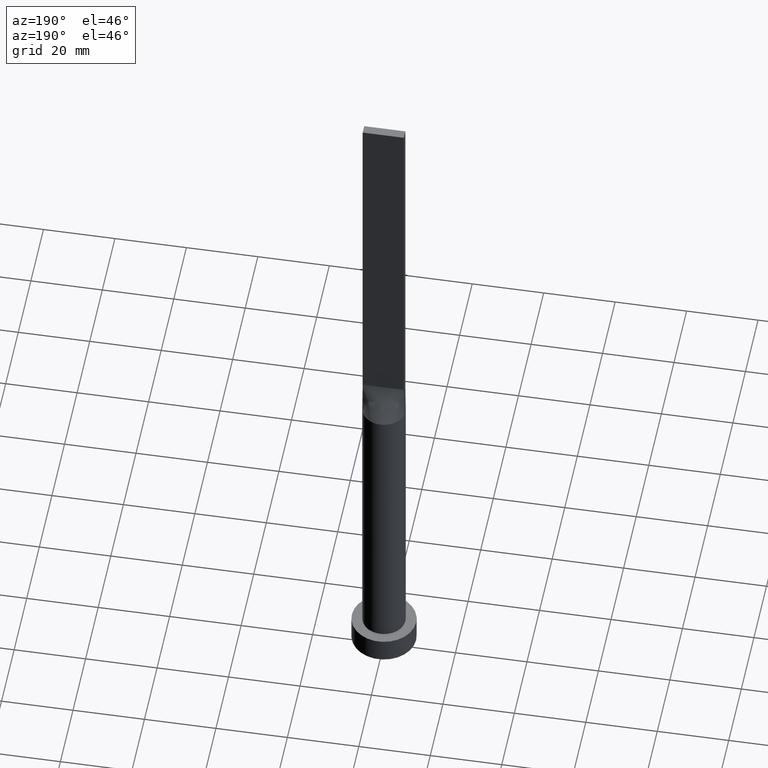
[diagram: clean part render]
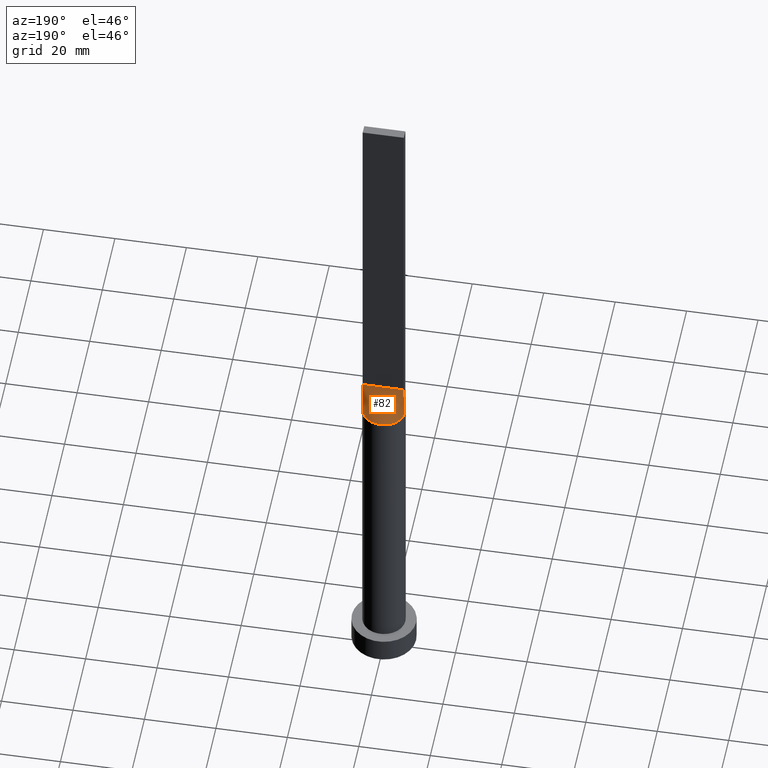
[diagram: same view with one face highlighted and labeled with its STEP entity id]
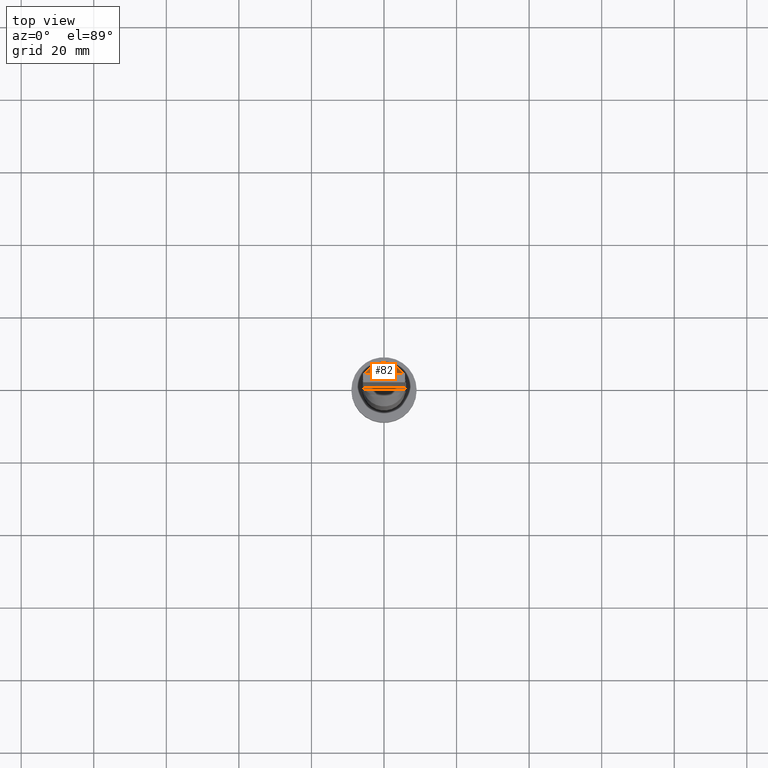
[diagram: same view with one face highlighted and labeled with its STEP entity id]
A machine part, auxiliary view. The second image highlights one B-rep face of the part: STEP entity #82.
A second angle (top view) of the same face is appended — the face is thin or edge-on in the first view.
In plain terms, the highlighted face is a freeform B-spline surface patch.
Its self-contained STEP definition (entity closure, byte-faithful):
#2 = CARTESIAN_POINT ( 'NONE',  ( -0.8058840496048931268, 5.959001506938069070, 90.00000000000001421 ) ) ;
#4 = ORIENTED_EDGE ( 'NONE', *, *, #496, .T. ) ;
#6 = CARTESIAN_POINT ( 'NONE',  ( -5.759267569818392829, 1.752014689090956256, 90.00000000000002842 ) ) ;
#23 = VERTEX_POINT ( 'NONE', #549 ) ;
#26 = CARTESIAN_POINT ( 'NONE',  ( 3.833333333333329929, 1.250000000000000222, 100.0000000000000000 ) ) ;
#29 = CARTESIAN_POINT ( 'NONE',  ( 4.659826596530313836, 3.842755878357678068, 90.00000000000002842 ) ) ;
#31 = B_SPLINE_CURVE_WITH_KNOTS ( 'NONE', 3,
 ( #96, #152, #329, #276, #462, #148, #106, #236, #226, #410, #420, #565, #2, #324, #359, #187, #190, #57, #367, #372, #6, #512 ),
 .UNSPECIFIED., .F., .F.,
 ( 4, 2, 2, 2, 2, 2, 2, 2, 2, 2, 4 ),
 ( 0.000000000000000000, 0.1249999999999999722, 0.2499999999999999445, 0.3749999999999999445, 0.4374999999999999445, 0.4999999999999998890, 0.5624999999999998890, 0.6249999999999998890, 0.7499999999999997780, 0.8749999999999998890, 1.000000000000000000 ),
 .UNSPECIFIED. ) ;
#32 = CARTESIAN_POINT ( 'NONE',  ( 3.354166666666662966, 1.250000000000000222, 100.0000000000000000 ) ) ;
#35 = FACE_OUTER_BOUND ( 'NONE', #466, .T. ) ;
#40 = CARTESIAN_POINT ( 'NONE',  ( -5.806529091768402928, 1.262288932993132606, 95.00000000000000000 ) ) ;
#50 = CARTESIAN_POINT ( 'NONE',  ( -1.966519853258818173, 5.681792876789067748, 90.00000000000001421 ) ) ;
#55 = CARTESIAN_POINT ( 'NONE',  ( -3.037647739454304663, 5.231880992812857123, 90.00000000000007105 ) ) ;
#57 = CARTESIAN_POINT ( 'NONE',  ( -4.659826596530312948, 3.842755878357679844, 90.00000000000001421 ) ) ;
#59 = CARTESIAN_POINT ( 'NONE',  ( -5.038190104264874236, 3.311355329404293446, 90.00000000000001421 ) ) ;
#63 = CARTESIAN_POINT ( 'NONE',  ( -5.750000000000000000, 1.250000000000000222, 100.0000000000000000 ) ) ;
#65 = CARTESIAN_POINT ( 'NONE',  ( 0.9583333333333283743, 1.250000000000000222, 100.0000000000000000 ) ) ;
#76 = EDGE_CURVE ( 'NONE', #79, #309, #227, .T. ) ;
#79 = VERTEX_POINT ( 'NONE', #92 ) ;
#82 = ADVANCED_FACE ( 'NONE', ( #35 ), #381, .T. ) ;
#88 = CARTESIAN_POINT ( 'NONE',  ( 5.759267569818392829, 1.752014689090955590, 90.00000000000002842 ) ) ;
#92 = CARTESIAN_POINT ( 'NONE',  ( 5.863058183536806744, 1.274577865986262326, 90.00000000000001421 ) ) ;
#96 = CARTESIAN_POINT ( 'NONE',  ( 5.863058183536806744, 1.274577865986262326, 90.00000000000001421 ) ) ;
#98 = CARTESIAN_POINT ( 'NONE',  ( -0.2395833333333383663, 1.250000000000000222, 100.0000000000000000 ) ) ;
#102 = LINE ( 'NONE', #40, #347 ) ;
#104 = CARTESIAN_POINT ( 'NONE',  ( -5.750000000000000000, 1.250000000000000222, 100.0000000000000000 ) ) ;
#106 = CARTESIAN_POINT ( 'NONE',  ( 3.037647739454305995, 5.231880992812856235, 90.00000000000002842 ) ) ;
#126 = CARTESIAN_POINT ( 'NONE',  ( 5.586898165904734093, 2.266054396544147309, 90.00000000000002842 ) ) ;
#134 = CARTESIAN_POINT ( 'NONE',  ( 5.750000000000000000, 1.250000000000000222, 100.0000000000000000 ) ) ;
#144 = DIRECTION ( 'NONE',  ( 0.01130506171853803803, -0.002457622112725964866, 0.9999330755971076456 ) ) ;
#145 = CARTESIAN_POINT ( 'NONE',  ( -0.4029827085191223790, 5.999999999999998224, 90.00000000000002842 ) ) ;
#148 = CARTESIAN_POINT ( 'NONE',  ( 3.660567483996337579, 4.804269179125218336, 90.00000000000002842 ) ) ;
#152 = CARTESIAN_POINT ( 'NONE',  ( 5.759267569818392829, 1.752014689090955590, 90.00000000000002842 ) ) ;
#157 = CARTESIAN_POINT ( 'NONE',  ( 3.660567483996337579, 4.804269179125218336, 90.00000000000002842 ) ) ;
#170 = ORIENTED_EDGE ( 'NONE', *, *, #211, .T. ) ;
#185 = VECTOR ( 'NONE', #579, 1000.000000000000000 ) ;
#187 = CARTESIAN_POINT ( 'NONE',  ( -3.037647739454304663, 5.231880992812857123, 90.00000000000007105 ) ) ;
#188 = CARTESIAN_POINT ( 'NONE',  ( 5.863058183536806744, 1.274577865986262104, 90.00000000000001421 ) ) ;
#190 = CARTESIAN_POINT ( 'NONE',  ( -3.660567483996338023, 4.804269179125219225, 90.00000000000005684 ) ) ;
#210 = CARTESIAN_POINT ( 'NONE',  ( 0.4029827085191226566, 5.999999999999999112, 90.00000000000002842 ) ) ;
#211 = EDGE_CURVE ( 'NONE', #337, #23, #102, .T. ) ;
#226 = CARTESIAN_POINT ( 'NONE',  ( 1.587717880441007479, 5.799853445840305710, 90.00000000000000000 ) ) ;
#227 = LINE ( 'NONE', #360, #393 ) ;
#236 = CARTESIAN_POINT ( 'NONE',  ( 1.966519853258819062, 5.681792876789066860, 90.00000000000002842 ) ) ;
#244 = CARTESIAN_POINT ( 'NONE',  ( -1.916666666666669849, 1.250000000000000222, 100.0000000000000000 ) ) ;
#250 = CARTESIAN_POINT ( 'NONE',  ( -1.197916666666670515, 1.250000000000000222, 100.0000000000000000 ) ) ;
#260 = LINE ( 'NONE', #63, #185 ) ;
#276 = CARTESIAN_POINT ( 'NONE',  ( 5.038190104264874236, 3.311355329404293002, 90.00000000000004263 ) ) ;
#277 = CARTESIAN_POINT ( 'NONE',  ( 5.270833333333332149, 1.250000000000000222, 100.0000000000000000 ) ) ;
#283 = CARTESIAN_POINT ( 'NONE',  ( -1.587717880441007035, 5.799853445840308375, 90.00000000000001421 ) ) ;
#288 = CARTESIAN_POINT ( 'NONE',  ( 2.395833333333328596, 1.250000000000000222, 100.0000000000000000 ) ) ;
#290 = CARTESIAN_POINT ( 'NONE',  ( -5.270833333333333925, 1.250000000000000222, 100.0000000000000000 ) ) ;
#293 = CARTESIAN_POINT ( 'NONE',  ( 1.587717880441007479, 5.799853445840305710, 90.00000000000000000 ) ) ;
#299 = CARTESIAN_POINT ( 'NONE',  ( -5.586898165904732316, 2.266054396544148197, 90.00000000000002842 ) ) ;
#309 = VERTEX_POINT ( 'NONE', #575 ) ;
#324 = CARTESIAN_POINT ( 'NONE',  ( -1.587717880441007035, 5.799853445840308375, 90.00000000000001421 ) ) ;
#329 = CARTESIAN_POINT ( 'NONE',  ( 5.586898165904734093, 2.266054396544147309, 90.00000000000002842 ) ) ;
#331 = CARTESIAN_POINT ( 'NONE',  ( -0.9583333333333372561, 1.250000000000000222, 100.0000000000000000 ) ) ;
#335 = CARTESIAN_POINT ( 'NONE',  ( 1.916666666666662078, 1.250000000000000222, 100.0000000000000000 ) ) ;
#337 = VERTEX_POINT ( 'NONE', #391 ) ;
#345 = EDGE_CURVE ( 'NONE', #309, #23, #260, .T. ) ;
#347 = VECTOR ( 'NONE', #144, 1000.000000000000114 ) ;
#352 = CARTESIAN_POINT ( 'NONE',  ( 5.038190104264874236, 3.311355329404293002, 90.00000000000004263 ) ) ;
#359 = CARTESIAN_POINT ( 'NONE',  ( -1.966519853258818173, 5.681792876789067748, 90.00000000000001421 ) ) ;
#360 = CARTESIAN_POINT ( 'NONE',  ( 5.806529091768402928, 1.262288932993131496, 95.00000000000000000 ) ) ;
#362 = ORIENTED_EDGE ( 'NONE', *, *, #345, .F. ) ;
#367 = CARTESIAN_POINT ( 'NONE',  ( -5.038190104264874236, 3.311355329404293446, 90.00000000000001421 ) ) ;
#372 = CARTESIAN_POINT ( 'NONE',  ( -5.586898165904732316, 2.266054396544148197, 90.00000000000002842 ) ) ;
#378 = CARTESIAN_POINT ( 'NONE',  ( -2.395833333333335702, 1.250000000000000222, 100.0000000000000000 ) ) ;
#381 = B_SPLINE_SURFACE_WITH_KNOTS ( 'NONE', 3, 1, ( 
 ( #188, #134 ),
 ( #88, #277 ),
 ( #126, #489 ),
 ( #352, #26 ),
 ( #29, #32 ),
 ( #157, #288 ),
 ( #417, #335 ),
 ( #480, #384 ),
 ( #293, #65 ),
 ( #558, #469 ),
 ( #210, #601 ),
 ( #145, #98 ),
 ( #509, #514 ),
 ( #283, #331 ),
 ( #50, #250 ),
 ( #55, #244 ),
 ( #425, #378 ),
 ( #522, #474 ),
 ( #59, #570 ),
 ( #299, #563 ),
 ( #517, #290 ),
 ( #428, #104 ) ),
 .UNSPECIFIED., .F., .F., .F.,
 ( 4, 2, 2, 2, 2, 2, 2, 2, 2, 2, 4 ),
 ( 2, 2 ),
 ( 0.000000000000000000, 0.1249999999999999722, 0.2499999999999999445, 0.3749999999999999445, 0.4374999999999999445, 0.4999999999999998890, 0.5624999999999998890, 0.6249999999999998890, 0.7499999999999997780, 0.8749999999999998890, 1.000000000000000000 ),
 ( 0.000000000000000000, 1.000000000000000000 ),
 .UNSPECIFIED. ) ;
#384 = CARTESIAN_POINT ( 'NONE',  ( 1.197916666666661856, 1.250000000000000222, 100.0000000000000000 ) ) ;
#391 = CARTESIAN_POINT ( 'NONE',  ( -5.863058287509749888, 1.274577880478287017, 90.00000000000001421 ) ) ;
#393 = VECTOR ( 'NONE', #503, 1000.000000000000114 ) ;
#410 = CARTESIAN_POINT ( 'NONE',  ( 0.8058840496048939039, 5.959001506938069070, 90.00000000000002842 ) ) ;
#417 = CARTESIAN_POINT ( 'NONE',  ( 3.037647739454305995, 5.231880992812856235, 90.00000000000002842 ) ) ;
#420 = CARTESIAN_POINT ( 'NONE',  ( 0.4029827085191226566, 5.999999999999999112, 90.00000000000002842 ) ) ;
#425 = CARTESIAN_POINT ( 'NONE',  ( -3.660567483996338023, 4.804269179125219225, 90.00000000000005684 ) ) ;
#428 = CARTESIAN_POINT ( 'NONE',  ( -5.863058183536805856, 1.274577865986265435, 90.00000000000001421 ) ) ;
#462 = CARTESIAN_POINT ( 'NONE',  ( 4.659826596530313836, 3.842755878357678068, 90.00000000000002842 ) ) ;
#466 = EDGE_LOOP ( 'NONE', ( #4, #170, #362, #555 ) ) ;
#469 = CARTESIAN_POINT ( 'NONE',  ( 0.4791666666666616337, 1.250000000000000222, 100.0000000000000000 ) ) ;
#474 = CARTESIAN_POINT ( 'NONE',  ( -3.354166666666667851, 1.250000000000000222, 100.0000000000000000 ) ) ;
#480 = CARTESIAN_POINT ( 'NONE',  ( 1.966519853258819062, 5.681792876789066860, 90.00000000000002842 ) ) ;
#489 = CARTESIAN_POINT ( 'NONE',  ( 4.791666666666664298, 1.250000000000000222, 100.0000000000000000 ) ) ;
#496 = EDGE_CURVE ( 'NONE', #79, #337, #31, .T. ) ;
#503 = DIRECTION ( 'NONE',  ( -0.01130506171853812650, -0.002457622112725661723, 0.9999330755971076456 ) ) ;
#509 = CARTESIAN_POINT ( 'NONE',  ( -0.8058840496048931268, 5.959001506938069070, 90.00000000000001421 ) ) ;
#512 = CARTESIAN_POINT ( 'NONE',  ( -5.863058287509749888, 1.274577880478287017, 90.00000000000001421 ) ) ;
#514 = CARTESIAN_POINT ( 'NONE',  ( -0.4791666666666711816, 1.250000000000000222, 100.0000000000000000 ) ) ;
#517 = CARTESIAN_POINT ( 'NONE',  ( -5.759267569818392829, 1.752014689090956256, 90.00000000000002842 ) ) ;
#522 = CARTESIAN_POINT ( 'NONE',  ( -4.659826596530312948, 3.842755878357679844, 90.00000000000001421 ) ) ;
#549 = CARTESIAN_POINT ( 'NONE',  ( -5.750000000000000000, 1.250000000000000222, 100.0000000000000000 ) ) ;
#555 = ORIENTED_EDGE ( 'NONE', *, *, #76, .F. ) ;
#558 = CARTESIAN_POINT ( 'NONE',  ( 0.8058840496048939039, 5.959001506938069070, 90.00000000000002842 ) ) ;
#563 = CARTESIAN_POINT ( 'NONE',  ( -4.791666666666666963, 1.250000000000000222, 100.0000000000000000 ) ) ;
#565 = CARTESIAN_POINT ( 'NONE',  ( -0.4029827085191223790, 5.999999999999998224, 90.00000000000002842 ) ) ;
#570 = CARTESIAN_POINT ( 'NONE',  ( -3.833333333333334370, 1.250000000000000222, 100.0000000000000000 ) ) ;
#575 = CARTESIAN_POINT ( 'NONE',  ( 5.750000000000000000, 1.250000000000000222, 100.0000000000000000 ) ) ;
#579 = DIRECTION ( 'NONE',  ( -1.000000000000000000, -0.000000000000000000, -0.000000000000000000 ) ) ;
#601 = CARTESIAN_POINT ( 'NONE',  ( 0.2395833333333281245, 1.250000000000000222, 100.0000000000000000 ) ) ;